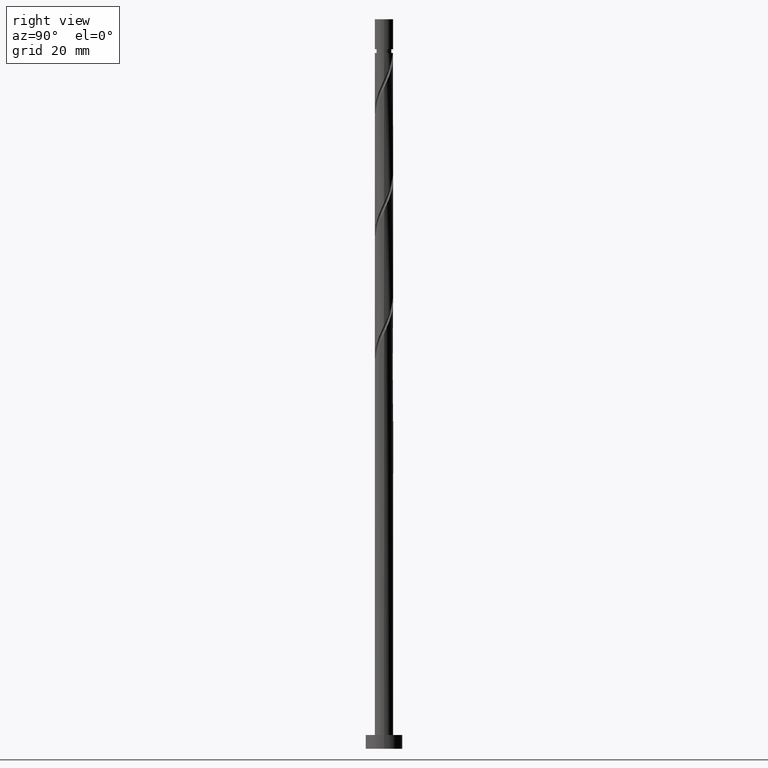
[diagram: clean part render]
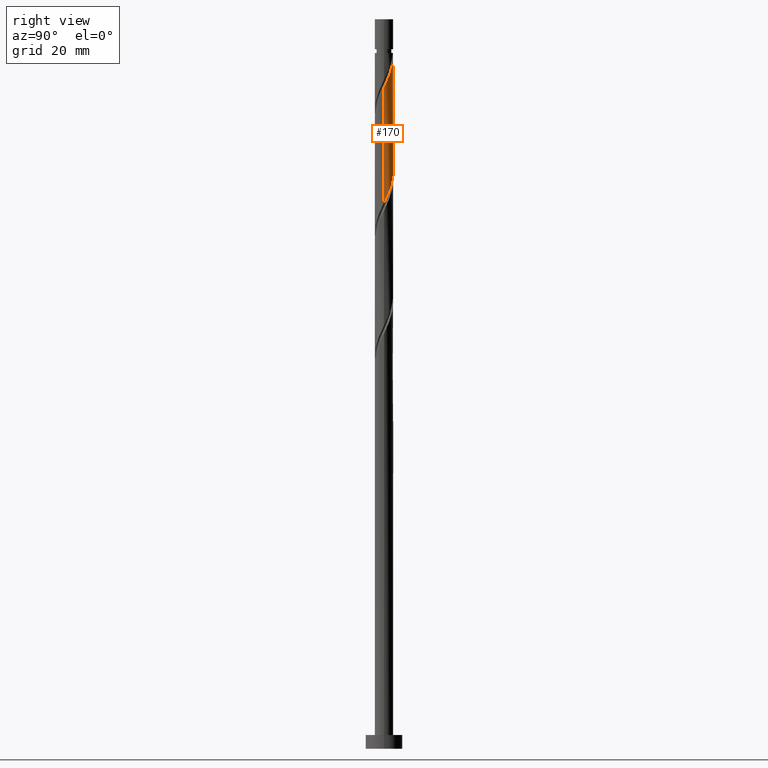
[diagram: same view with one face highlighted and labeled with its STEP entity id]
A machine part, right view. The second image highlights one B-rep face of the part: STEP entity #170.
In plain terms, the highlighted cylindrical surface (edge-blend (fillet) strip) has radius 2 mm, axis along (-0, -0, -1).
Its self-contained STEP definition (entity closure, byte-faithful):
#30 = CARTESIAN_POINT ( 'NONE',  ( -0.1161895186124970447, 2.017223038501450905, 150.3968388245910717 ) ) ;
#40 = CARTESIAN_POINT ( 'NONE',  ( -0.3979949748426480083, 1.960000000000003073, 151.0028994306516950 ) ) ;
#41 = CARTESIAN_POINT ( 'NONE',  ( 2.000000000000000444, 0.2290578547702440959, 119.0049805295905401 ) ) ;
#66 = CARTESIAN_POINT ( 'NONE',  ( 1.980155124014554291, 0.4020876473299550002, 144.3362327639850093 ) ) ;
#68 = CARTESIAN_POINT ( 'NONE',  ( 0.000000000000000000, 0.000000000000000000, 158.3300000000000125 ) ) ;
#75 = CARTESIAN_POINT ( 'NONE',  ( 2.000000000000003553, 1.046977449244738821E-15, 143.4867782846841067 ) ) ;
#146 = VERTEX_POINT ( 'NONE', #75 ) ;
#150 = EDGE_CURVE ( 'NONE', #146, #1570, #1604, .T. ) ;
#159 = CARTESIAN_POINT ( 'NONE',  ( 2.000000000000003109, 0.05755105304764857044, 143.6088762894023318 ) ) ;
#167 = CARTESIAN_POINT ( 'NONE',  ( 1.786663747202085650, 0.9436744384215545178, 145.5483539761062559 ) ) ;
#170 = ADVANCED_FACE ( 'NONE', ( #1222 ), #967, .T. ) ;
#186 = CARTESIAN_POINT ( 'NONE',  ( 0.7248413235775373886, 1.864029252891266530, 148.5786570064092302 ) ) ;
#200 = ORIENTED_EDGE ( 'NONE', *, *, #1446, .T. ) ;
#222 = EDGE_CURVE ( 'NONE', #146, #683, #431, .T. ) ;
#244 = EDGE_CURVE ( 'NONE', #1340, #1570, #1338, .T. ) ;
#288 = ORIENTED_EDGE ( 'NONE', *, *, #422, .F. ) ;
#291 = CARTESIAN_POINT ( 'NONE',  ( -1.883409435608316418, 0.6728810428757543427, 130.3968388245910717 ) ) ;
#308 = CARTESIAN_POINT ( 'NONE',  ( 0.3979949748426485634, 1.959999999999999964, 124.3362327639850236 ) ) ;
#321 = CARTESIAN_POINT ( 'NONE',  ( 1.883197487972272377, 0.7322950311120128841, 120.0938085215607316 ) ) ;
#329 = DIRECTION ( 'NONE',  ( -0.000000000000000000, -0.000000000000000000, -1.000000000000000000 ) ) ;
#338 = VECTOR ( 'NONE', #1582, 1000.000000000000000 ) ;
#350 = VERTEX_POINT ( 'NONE', #1237 ) ;
#382 = CARTESIAN_POINT ( 'NONE',  ( 1.948211798543799889, 0.4521844623765072235, 119.4877479155001652 ) ) ;
#422 = EDGE_CURVE ( 'NONE', #350, #1340, #963, .T. ) ;
#423 = CARTESIAN_POINT ( 'NONE',  ( 1.394470680848405753, 1.433684595806965723, 121.9119903397425588 ) ) ;
#431 =( BOUNDED_CURVE ( )  B_SPLINE_CURVE ( 2, ( #1478, #159, #1086, #66, #787, #167, #955, #1586, #678, #657, #186, #1312, #1186, #30, #40 ),
 .UNSPECIFIED., .F., .T. ) 
 B_SPLINE_CURVE_WITH_KNOTS ( ( 3, 2, 2, 2, 2, 2, 2, 3 ),
 ( 0.6795252162417515507, 0.6818181818181818787, 0.6931818181818181213, 0.7045454545454545858, 0.7159090909090908283, 0.7272727272727271819, 0.7386363636363635354, 0.7499999999999998890 ),
 .UNSPECIFIED. ) 
 CURVE ( )  GEOMETRIC_REPRESENTATION_ITEM ( )  RATIONAL_B_SPLINE_CURVE ( ( 0.9061101570135693395, 0.9072237824201514478, 0.9090909090909289336, 0.8998376744372310609, 0.9090909090909289336, 0.8998376744372310609, 0.9090909090909289336, 0.8998376744372310609, 0.9090909090909289336, 0.8998376744372310609, 0.9090909090909289336, 0.8998376744372310609, 0.9090909090909289336, 0.8998376744372311720, 0.9090909090909288226 ) ) 
 REPRESENTATION_ITEM ( '' )  );
#436 = DIRECTION ( 'NONE',  ( -1.000000000000000000, 0.000000000000000000, 0.000000000000000000 ) ) ;
#451 = CARTESIAN_POINT ( 'NONE',  ( 1.600603406160404196, 1.233189980288573295, 121.3059297336819782 ) ) ;
#463 = CARTESIAN_POINT ( 'NONE',  ( 2.000000000000000000, 2.449293598294705921E-16, 158.3300000000000125 ) ) ;
#469 = DIRECTION ( 'NONE',  ( -0.000000000000000000, -0.000000000000000000, -1.000000000000000000 ) ) ;
#543 = CARTESIAN_POINT ( 'NONE',  ( -0.7248413235775362784, 1.864029252891264088, 126.7604751882274456 ) ) ;
#553 = CARTESIAN_POINT ( 'NONE',  ( -2.000000000000000000, 0.05755105304764863289, 131.7302559052343156 ) ) ;
#577 = CARTESIAN_POINT ( 'NONE',  ( -1.220637884402354434, 1.584311571365223825, 127.9725964003486496 ) ) ;
#612 = AXIS2_PLACEMENT_3D ( 'NONE', #1112, #469, #975 ) ;
#657 = CARTESIAN_POINT ( 'NONE',  ( 0.9928482695149688508, 1.759812803970230544, 147.9725964003486638 ) ) ;
#658 = CARTESIAN_POINT ( 'NONE',  ( 1.999999999999999556, -2.191174233062221259E-15, 118.5190205766192122 ) ) ;
#678 = CARTESIAN_POINT ( 'NONE',  ( 1.220637884402356654, 1.584311571365226046, 147.3665357942880405 ) ) ;
#683 = VERTEX_POINT ( 'NONE', #1031 ) ;
#691 = CARTESIAN_POINT ( 'NONE',  ( 1.188337955536406865, 1.634179211325358372, 122.5180509458031679 ) ) ;
#787 = CARTESIAN_POINT ( 'NONE',  ( 1.883409435608319304, 0.6728810428757545647, 144.9422933700455474 ) ) ;
#807 = CARTESIAN_POINT ( 'NONE',  ( -2.000000000000000000, 1.734991201605581417E-15, 131.8523539099525408 ) ) ;
#816 = CARTESIAN_POINT ( 'NONE',  ( 0.1161895186125003337, 2.017223038501447796, 124.9422933700456042 ) ) ;
#824 = CARTESIAN_POINT ( 'NONE',  ( -1.980155124014550738, 0.4020876473299550002, 131.0028994306516665 ) ) ;
#849 = CARTESIAN_POINT ( 'NONE',  ( -2.000000000000000000, 0.000000000000000000, 158.3300000000000125 ) ) ;
#938 = CARTESIAN_POINT ( 'NONE',  ( 1.741900447066337509, 0.9827425057002938669, 120.6998691276213691 ) ) ;
#955 = CARTESIAN_POINT ( 'NONE',  ( 1.617545623245914443, 1.176242388590887478, 146.1544145821667939 ) ) ;
#963 = LINE ( 'NONE', #849, #1601 ) ;
#967 = CYLINDRICAL_SURFACE ( 'NONE', #1500, 2.000000000000000000 ) ;
#975 = DIRECTION ( 'NONE',  ( -1.000000000000000000, 0.000000000000000000, 0.000000000000000000 ) ) ;
#1030 = EDGE_LOOP ( 'NONE', ( #1410, #1048, #1386, #288, #200 ) ) ;
#1031 = CARTESIAN_POINT ( 'NONE',  ( -0.3979949748426480638, 1.960000000000003073, 151.0028994306516950 ) ) ;
#1048 = ORIENTED_EDGE ( 'NONE', *, *, #150, .T. ) ;
#1068 = CARTESIAN_POINT ( 'NONE',  ( -0.4568343776401056489, 1.968245701812300963, 126.1544145821668081 ) ) ;
#1079 = CIRCLE ( 'NONE', #612, 1.999999999999994005 ) ;
#1086 = CARTESIAN_POINT ( 'NONE',  ( 1.996690616564942955, 0.1150068768444763023, 143.7301721579243861 ) ) ;
#1093 = CARTESIAN_POINT ( 'NONE',  ( 0.9340691933046018081, 1.768478086411955141, 123.1241115518638054 ) ) ;
#1112 = CARTESIAN_POINT ( 'NONE',  ( 0.000000000000000000, 0.000000000000000000, 151.0028994306516665 ) ) ;
#1186 = CARTESIAN_POINT ( 'NONE',  ( 0.1703224295138034972, 1.992734370156877821, 149.7907782185303915 ) ) ;
#1219 = CARTESIAN_POINT ( 'NONE',  ( -1.448427499289741682, 1.408810338760219549, 128.5786570064092587 ) ) ;
#1222 = FACE_OUTER_BOUND ( 'NONE', #1030, .T. ) ;
#1237 = CARTESIAN_POINT ( 'NONE',  ( -1.999999999999994005, 0.000000000000000000, 151.0028994306516665 ) ) ;
#1312 = CARTESIAN_POINT ( 'NONE',  ( 0.4568343776401069811, 1.968245701812304072, 149.1847176124698535 ) ) ;
#1321 = CARTESIAN_POINT ( 'NONE',  ( -0.9928482695149669635, 1.759812803970227657, 127.3665357942880263 ) ) ;
#1328 = CARTESIAN_POINT ( 'NONE',  ( -1.617545623245911557, 1.176242388590886367, 129.1847176124698535 ) ) ;
#1338 =( BOUNDED_CURVE ( )  B_SPLINE_CURVE ( 2, ( #807, #553, #1595, #824, #291, #1344, #1328, #1219, #577, #1321, #543, #1068, #1466, #816, #308, #1472, #1093, #691, #423, #451, #938, #321, #382, #41, #658 ),
 .UNSPECIFIED., .F., .T. ) 
 B_SPLINE_CURVE_WITH_KNOTS ( ( 3, 2, 2, 2, 2, 2, 2, 2, 2, 2, 2, 2, 3 ),
 ( 0.4295252162417514952, 0.4318181818181818232, 0.4431818181818181768, 0.4545454545454545303, 0.4659090909090908839, 0.4772727272727272929, 0.4886363636363636465, 0.5000000000000000000, 0.5113636363636363535, 0.5227272727272727071, 0.5340909090909090606, 0.5454545454545454142, 0.5545252162417513286 ),
 .UNSPECIFIED. ) 
 CURVE ( )  GEOMETRIC_REPRESENTATION_ITEM ( )  RATIONAL_B_SPLINE_CURVE ( ( 0.9061101570135619010, 0.9072237824201440093, 0.9090909090909213841, 0.8998376744372236224, 0.9090909090909213841, 0.8998376744372236224, 0.9090909090909213841, 0.8998376744372236224, 0.9090909090909213841, 0.8998376744372236224, 0.9090909090909213841, 0.8998376744372236224, 0.9090909090909213841, 0.8998376744372236224, 0.9090909090909213841, 0.8998376744372236224, 0.9090909090909213841, 0.8998376744372236224, 0.9090909090909213841, 0.8998376744372236224, 0.9090909090909213841, 0.8998376744372236224, 0.9090909090909213841, 0.9017048011080011083, 0.9061101570135616790 ) ) 
 REPRESENTATION_ITEM ( '' )  );
#1340 = VERTEX_POINT ( 'NONE', #1353 ) ;
#1344 = CARTESIAN_POINT ( 'NONE',  ( -1.786663747202081876, 0.9436744384215537407, 129.7907782185304484 ) ) ;
#1353 = CARTESIAN_POINT ( 'NONE',  ( -2.000000000000000000, 1.734991201605581417E-15, 131.8523539099525408 ) ) ;
#1380 = CARTESIAN_POINT ( 'NONE',  ( 1.999999999999999556, -2.191174233062221259E-15, 118.5190205766192122 ) ) ;
#1386 = ORIENTED_EDGE ( 'NONE', *, *, #244, .F. ) ;
#1410 = ORIENTED_EDGE ( 'NONE', *, *, #222, .F. ) ;
#1446 = EDGE_CURVE ( 'NONE', #350, #683, #1079, .T. ) ;
#1466 = CARTESIAN_POINT ( 'NONE',  ( -0.1703224295138027200, 1.992734370156874713, 125.5483539761061991 ) ) ;
#1472 = CARTESIAN_POINT ( 'NONE',  ( 0.6798004310727960853, 1.902776961498551467, 123.7301721579243718 ) ) ;
#1478 = CARTESIAN_POINT ( 'NONE',  ( 2.000000000000003553, 1.046977449244738821E-15, 143.4867782846841067 ) ) ;
#1484 = DIRECTION ( 'NONE',  ( -0.000000000000000000, -0.000000000000000000, -1.000000000000000000 ) ) ;
#1500 = AXIS2_PLACEMENT_3D ( 'NONE', #68, #1484, #436 ) ;
#1570 = VERTEX_POINT ( 'NONE', #1380 ) ;
#1582 = DIRECTION ( 'NONE',  ( -0.000000000000000000, -0.000000000000000000, -1.000000000000000000 ) ) ;
#1586 = CARTESIAN_POINT ( 'NONE',  ( 1.448427499289745013, 1.408810338760221104, 146.7604751882274456 ) ) ;
#1595 = CARTESIAN_POINT ( 'NONE',  ( -1.996690616564939846, 0.1150068768444769407, 131.6089600367122614 ) ) ;
#1601 = VECTOR ( 'NONE', #329, 1000.000000000000000 ) ;
#1604 = LINE ( 'NONE', #463, #338 ) ;